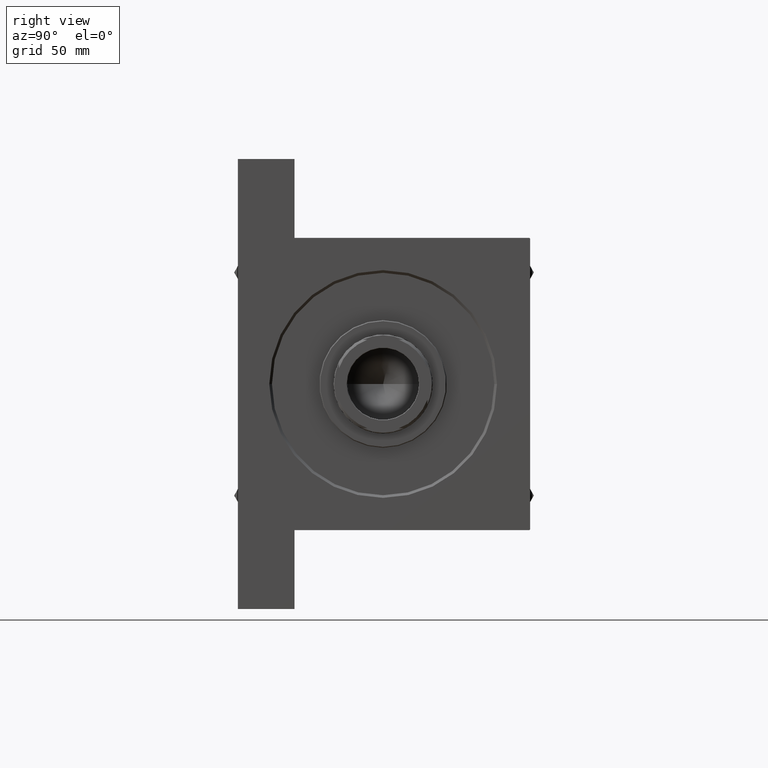
[diagram: clean part render]
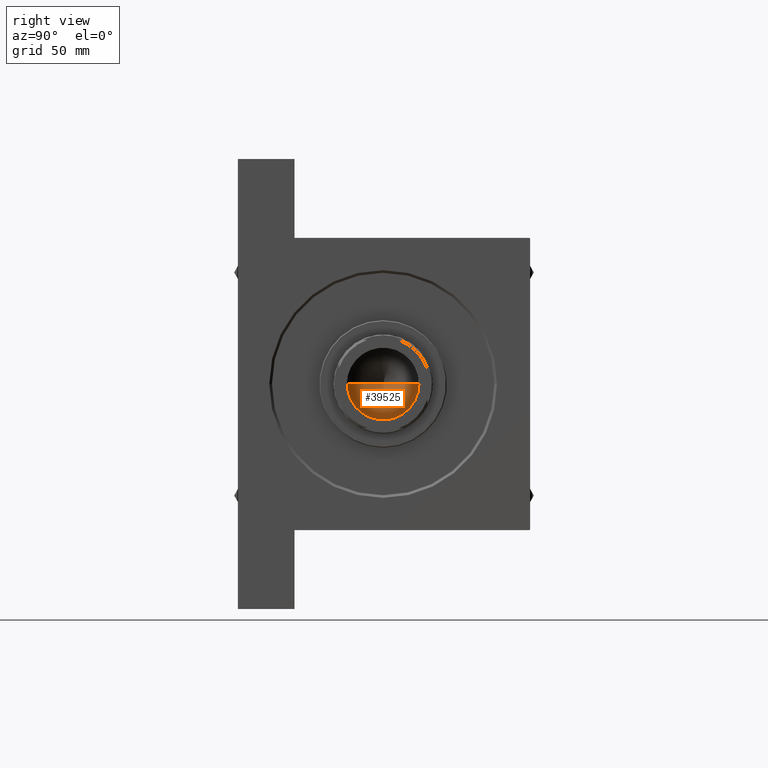
[diagram: same view with one face highlighted and labeled with its STEP entity id]
A machine part, right view. The second image highlights one B-rep face of the part: STEP entity #39525.
In plain terms, the highlighted conical surface has half-angle 59 deg.
Its self-contained STEP definition (entity closure, byte-faithful):
#4949 = EDGE_CURVE ( 'NONE', #24423, #26569, #35679, .T. ) ;
#5036 = EDGE_LOOP ( 'NONE', ( #32025, #13564, #26115 ) ) ;
#5559 = DIRECTION ( 'NONE',  ( 0.8571673007021115565, 0.000000000000000000, 0.5150380749100554878 ) ) ;
#6948 = AXIS2_PLACEMENT_3D ( 'NONE', #25414, #17655, #28827 ) ;
#8393 = CARTESIAN_POINT ( 'NONE',  ( -20.24999999999998934, 2.479909768273389117E-15, 136.0000000000000000 ) ) ;
#9992 = AXIS2_PLACEMENT_3D ( 'NONE', #11732, #37750, #31396 ) ;
#11732 = CARTESIAN_POINT ( 'NONE',  ( 0.000000000000000000, 0.000000000000000000, 136.0000000000000000 ) ) ;
#13564 = ORIENTED_EDGE ( 'NONE', *, *, #42281, .T. ) ;
#17343 = LINE ( 'NONE', #47008, #24480 ) ;
#17593 = CARTESIAN_POINT ( 'NONE',  ( 20.24999999999998934, 0.000000000000000000, 136.0000000000000000 ) ) ;
#17655 = DIRECTION ( 'NONE',  ( -0.000000000000000000, -0.000000000000000000, 1.000000000000000000 ) ) ;
#23756 = EDGE_CURVE ( 'NONE', #42561, #26569, #17343, .T. ) ;
#23864 = FACE_OUTER_BOUND ( 'NONE', #5036, .T. ) ;
#24423 = VERTEX_POINT ( 'NONE', #17593 ) ;
#24480 = VECTOR ( 'NONE', #47731, 1000.000000000000000 ) ;
#24735 = CONICAL_SURFACE ( 'NONE', #9992, 20.24999999999998934, 1.029744258676652979 ) ;
#25414 = CARTESIAN_POINT ( 'NONE',  ( 0.000000000000000000, 0.000000000000000000, 136.0000000000000000 ) ) ;
#26115 = ORIENTED_EDGE ( 'NONE', *, *, #4949, .T. ) ;
#26569 = VERTEX_POINT ( 'NONE', #8393 ) ;
#27922 = LINE ( 'NONE', #31558, #39480 ) ;
#28827 = DIRECTION ( 'NONE',  ( 1.000000000000000000, 0.000000000000000000, 0.000000000000000000 ) ) ;
#31396 = DIRECTION ( 'NONE',  ( 1.000000000000000000, 0.000000000000000000, 0.000000000000000000 ) ) ;
#31558 = CARTESIAN_POINT ( 'NONE',  ( 20.24999999999998934, 0.000000000000000000, 136.0000000000000000 ) ) ;
#32025 = ORIENTED_EDGE ( 'NONE', *, *, #23756, .F. ) ;
#35679 = CIRCLE ( 'NONE', #6948, 20.24999999999998934 ) ;
#37750 = DIRECTION ( 'NONE',  ( -0.000000000000000000, -0.000000000000000000, 1.000000000000000000 ) ) ;
#39480 = VECTOR ( 'NONE', #5559, 1000.000000000000000 ) ;
#39525 = ADVANCED_FACE ( 'NONE', ( #23864 ), #24735, .F. ) ;
#42281 = EDGE_CURVE ( 'NONE', #42561, #24423, #27922, .T. ) ;
#42561 = VERTEX_POINT ( 'NONE', #48036 ) ;
#47008 = CARTESIAN_POINT ( 'NONE',  ( -20.24999999999998934, 2.479909768273389117E-15, 136.0000000000000000 ) ) ;
#47731 = DIRECTION ( 'NONE',  ( -0.8571673007021115565, 1.049727191138617710E-16, 0.5150380749100554878 ) ) ;
#48036 = CARTESIAN_POINT ( 'NONE',  ( -1.584115414415908206E-14, 0.000000000000000000, 123.8325724646918786 ) ) ;